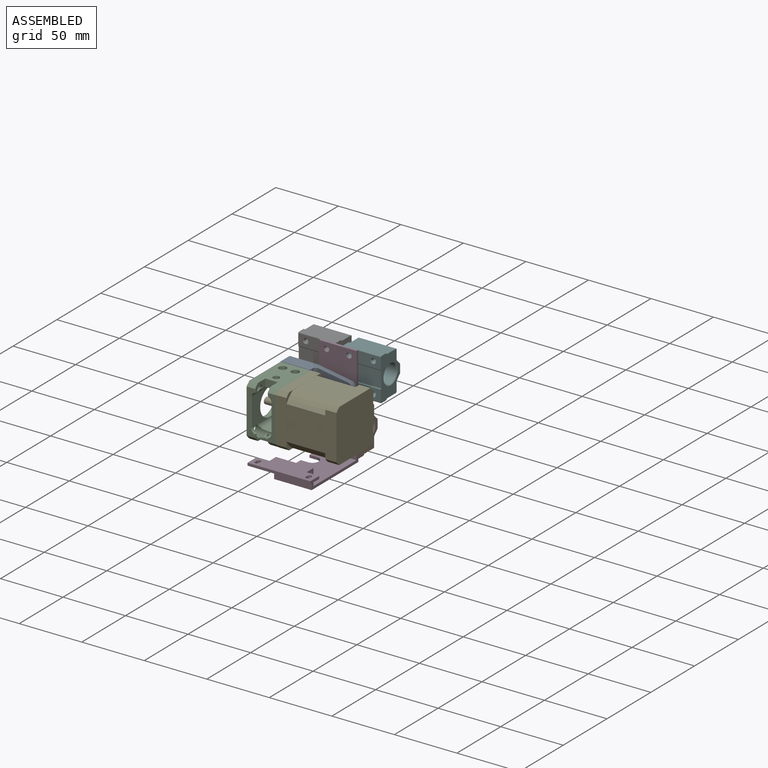
[diagram: assembled view]
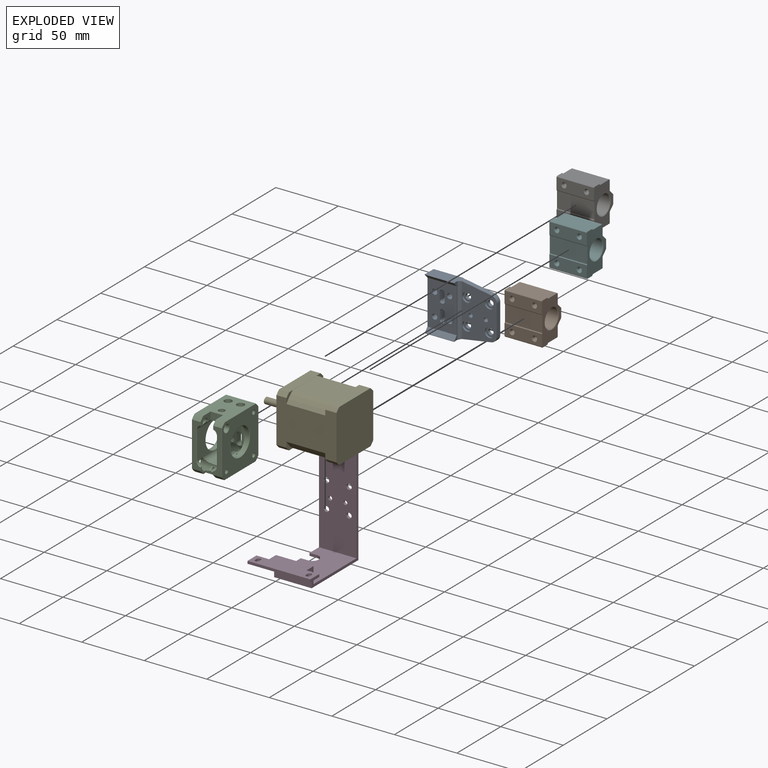
[diagram: exploded view]
GUIDED TOUR — MATED ASSEMBLY (Onshape document 117f9ef6bd54b4592c6fb915, AutoMate assembly 117f9ef6bd54b4592c6fb915_e3fcc4e9994bc45d470cb7e1_33f9f87115cc3c1b8286a026_default)

This assembly has 7 components, labeled P0..P6 below (a component is one placed occurrence of a part; the same part can appear more than once), held together by 6 mates. A mate is a constraint between two components; its type names the relative motion it leaves free:
  FASTENED — locks the two components together rigidly (no relative motion),
  SLIDER — leaves translation along the listed axis free.
Axis/direction vectors are unit vectors and 'through' points are millimeter coordinates, both in the assembly's world frame.

MATES
  1. FASTENED "Fastened 5": P4 <-> P2, direction (-1.000, 0.000, 0.000) through (-1.73, -10.08, 16.37) mm
  2. FASTENED "Fastened 4": P1 <-> P3, direction (0.000, -1.000, 0.000) through (4.17, 4.25, -9.62) mm
  3. FASTENED "Fastened 3": P6 <-> P3, direction (0.000, -1.000, 0.000) through (4.17, 4.25, 35.18) mm
  4. FASTENED "Fastened 2": P3 <-> P0, direction (0.000, -1.000, 0.000) through (4.17, 2.15, 11.18) mm
  5. SLIDER "Slider 1": P5 <-> P3, axis (0.000, -1.000, 0.000) through (22.17, 4.25, 35.18) mm
  6. FASTENED "Fastened 1": P0 <-> P2, direction (0.000, -1.000, 0.000) through (-19.73, -4.58, 9.87) mm

ASSEMBLY ORDER
  1. P4 — the base component [order verified]
  2. P2 [order verified]
  3. P3 [order verified]
  4. P0 [order verified]
  5. P5 [order verified]
  6. P1 [order verified]
  7. P6 [order verified]
(P2 verified with a relaxed clearance tolerance: the source model stores slight part interference there.)
Order-tag legend:
  [order verified] — this step's position reverses a verified removal order: the component was checked to insert without passing through the ones already placed.

Of the 7 components, 2 carry the full construction recipe — the FeatureScript program that regenerates the part's solid from scratch; the rest are supplied as boundary geometry only.
Each toured component is shown spotlighted twice — in the assembled view, then in the exploded view, where a leader line traces a displaced component back to its assembled socket (saturated green if recipe-attached, orange if geometry-only; every other component desaturated gray) — followed by its recipe or geometry summary and the mates that hold it.
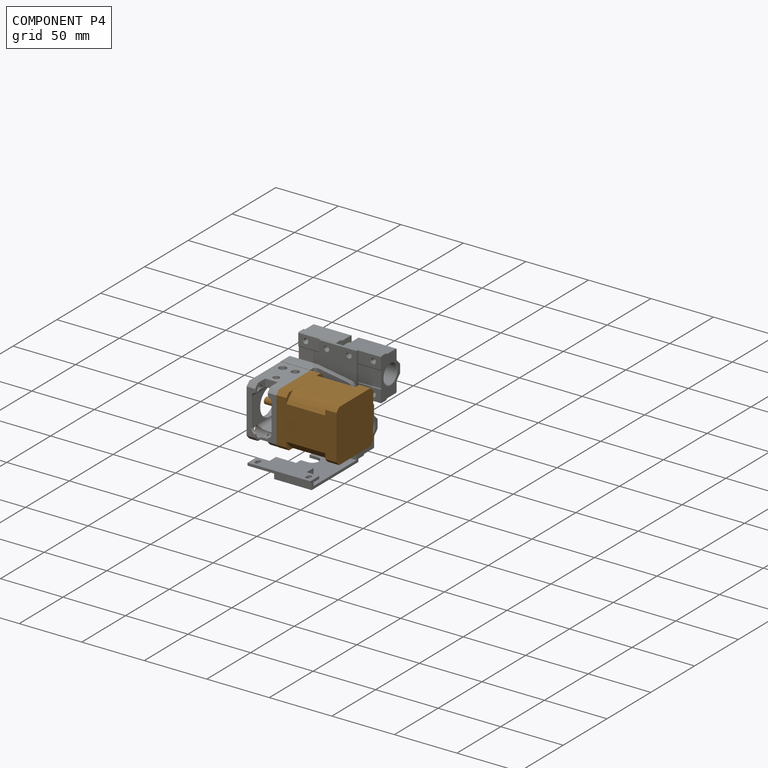
[diagram: component P4 — assembled]
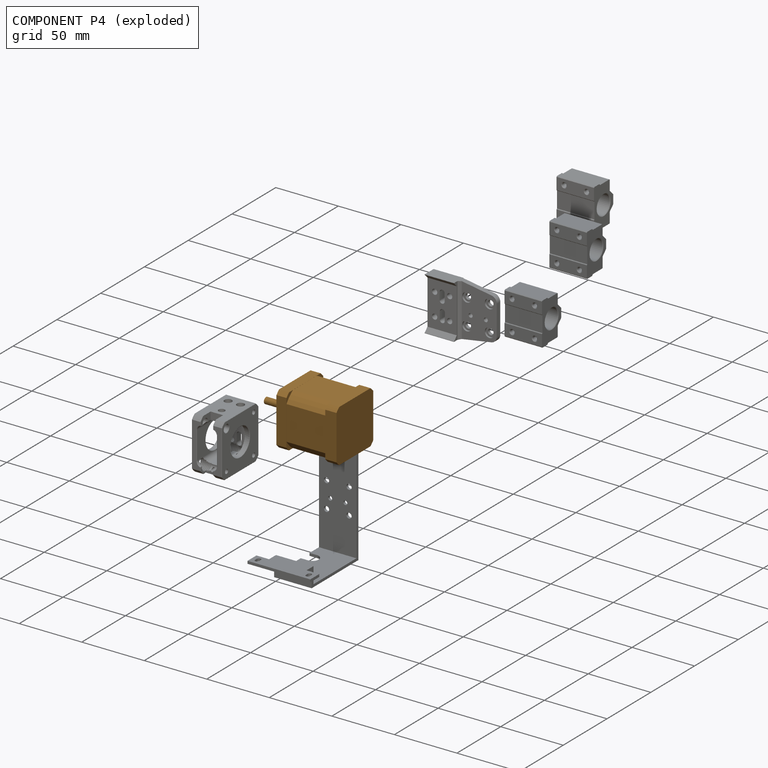
[diagram: component P4 — exploded]
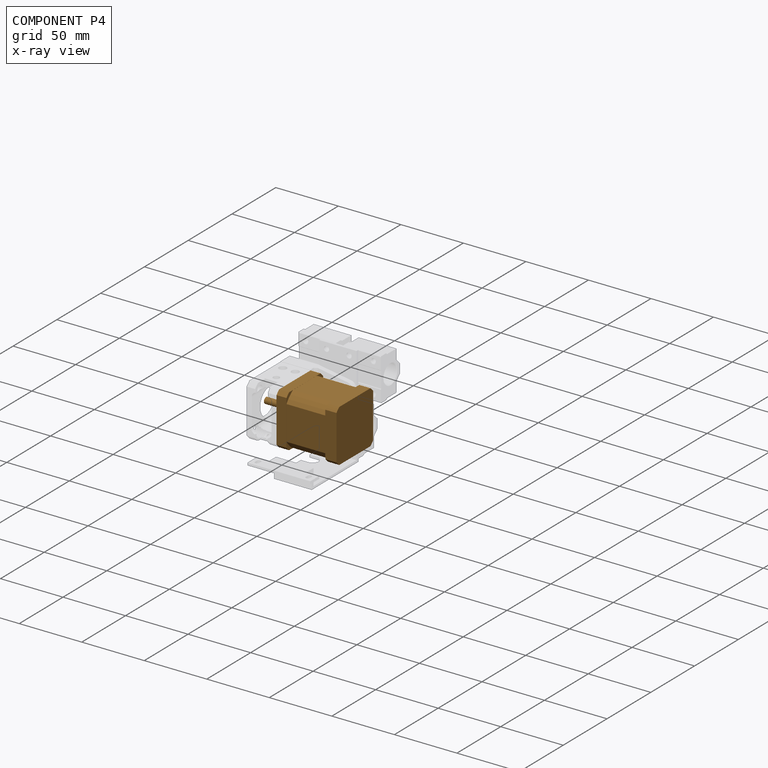
[diagram: component P4 — x-ray view]
COMPONENT P4 — geometry summary (no construction recipe available for this part):
  bounding box: 71.0 x 42.0 x 42.0 mm
  B-rep topology: 1 solid, 40 faces, 182 edges
  volume: 82229 mm^3 (66% of its bounding box)
  symmetry: 4-fold rotationally symmetric about the z axis; mirror-symmetric across its x mid-plane, y mid-plane
Held by: FASTENED mate "Fastened 5" to P2.
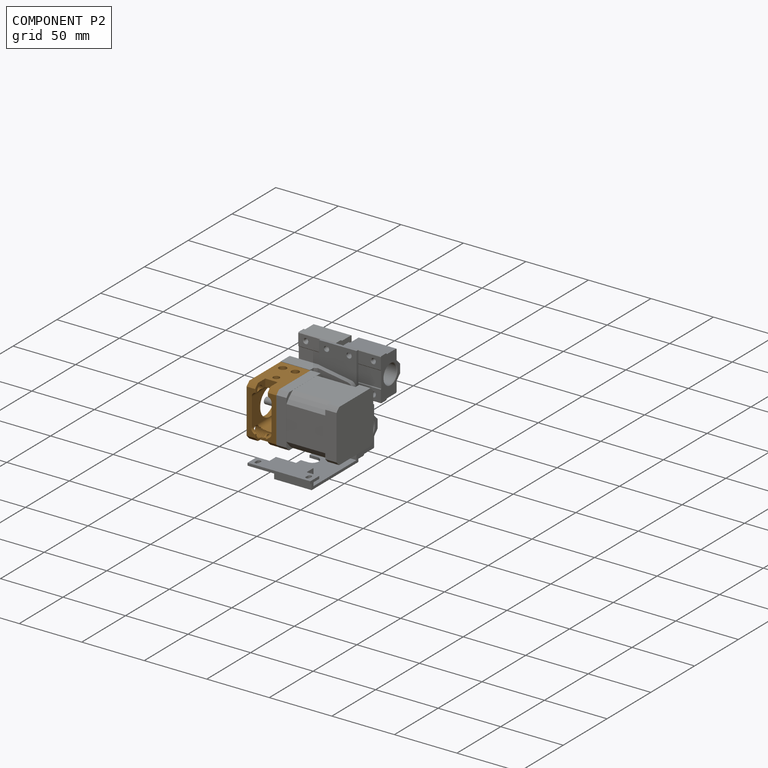
[diagram: component P2 — assembled]
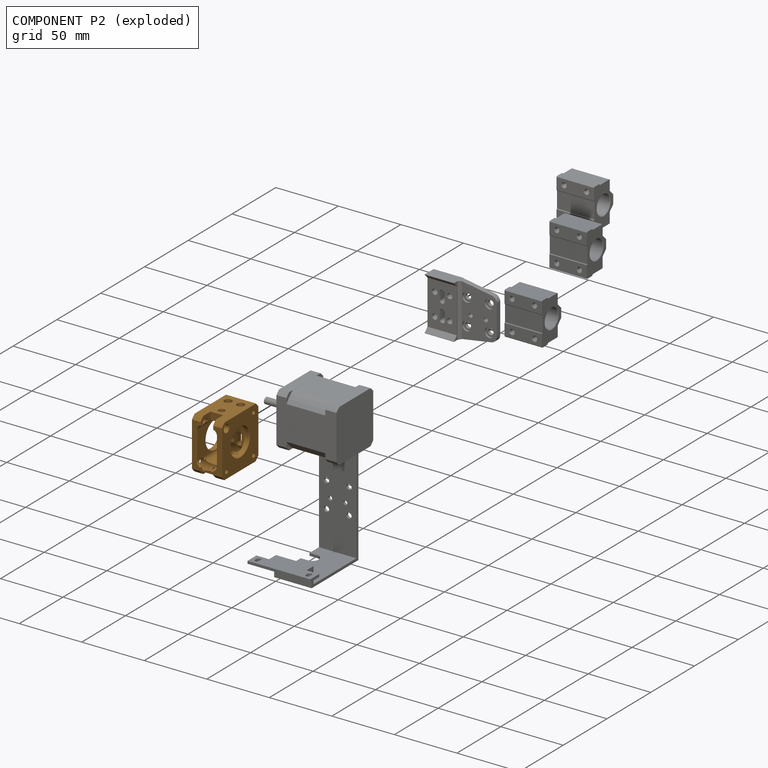
[diagram: component P2 — exploded]
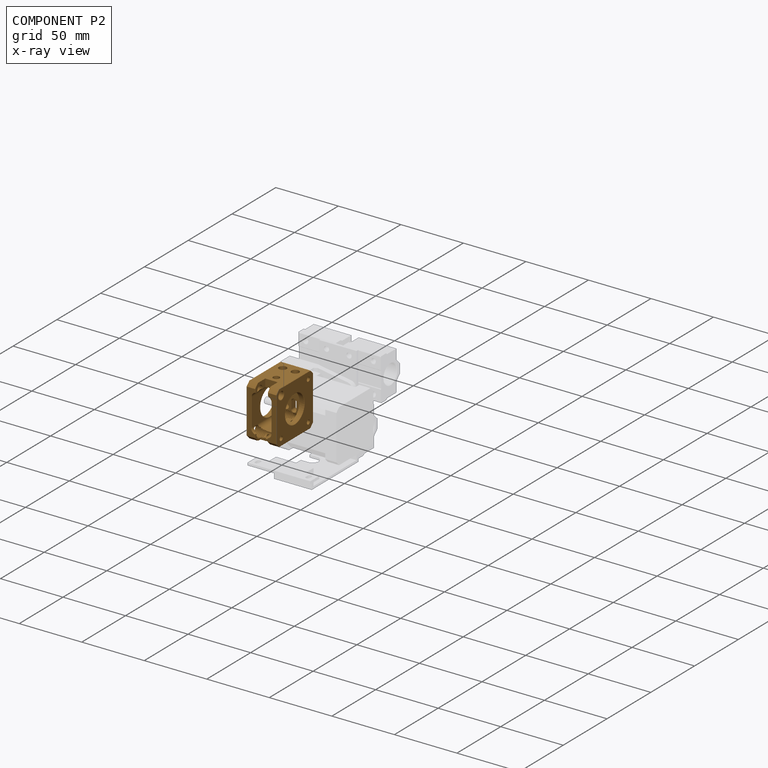
[diagram: component P2 — x-ray view]
COMPONENT P2 — geometry summary (no construction recipe available for this part):
  bounding box: 42.1 x 42.1 x 24.5 mm
  B-rep topology: 1 solid, 462 faces, 2598 edges
  volume: 16699 mm^3 (38% of its bounding box)
Held by: FASTENED mate "Fastened 5" to P4; FASTENED mate "Fastened 1" to P0.
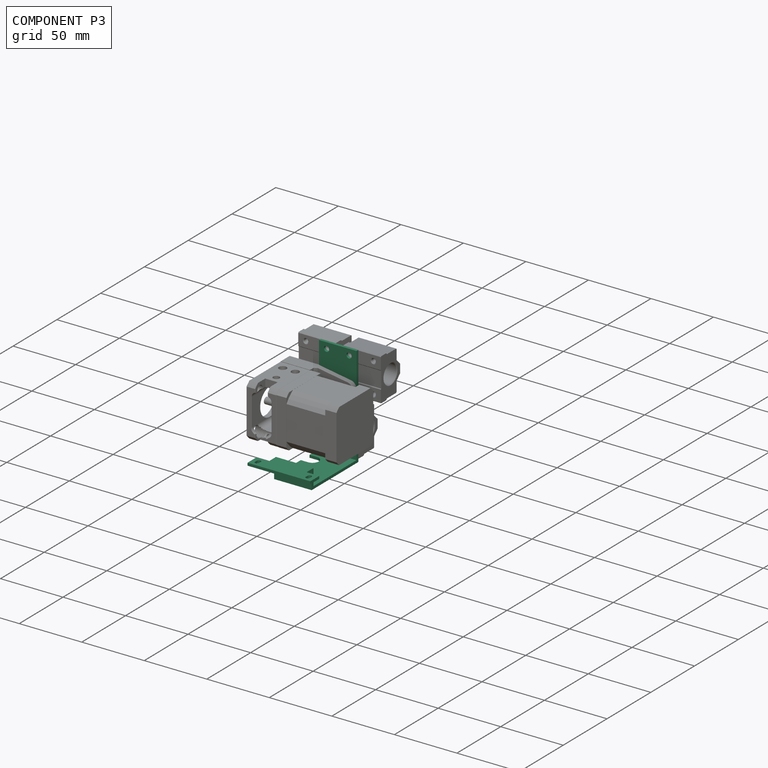
[diagram: component P3 — assembled]
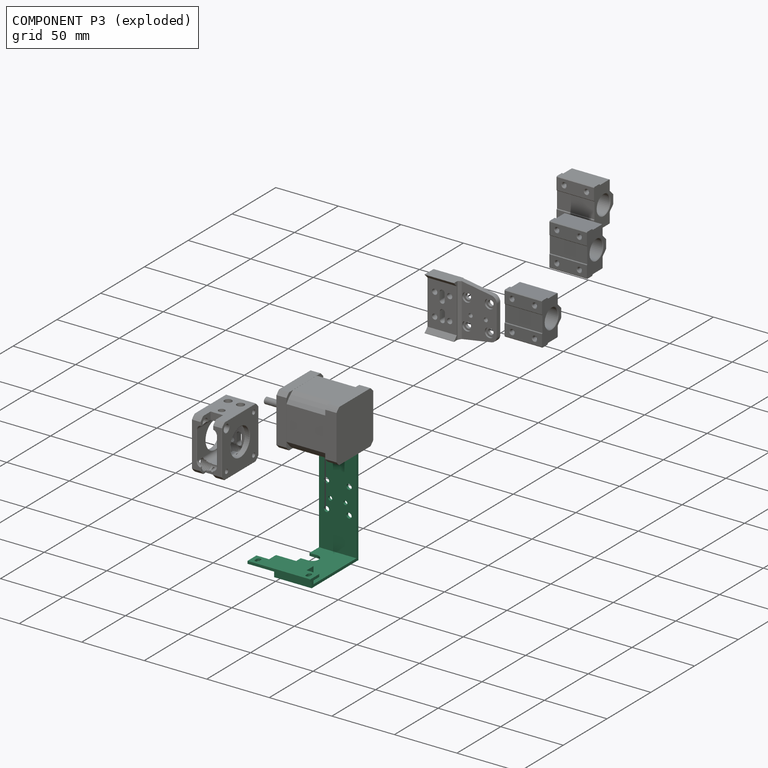
[diagram: component P3 — exploded]
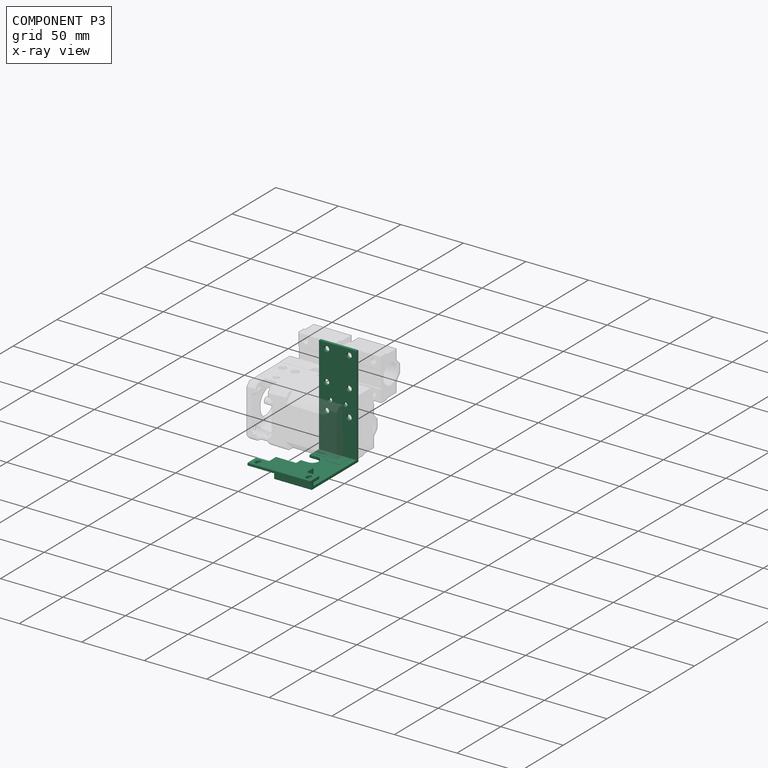
[diagram: component P3 — x-ray view]
COMPONENT P3 — recipe-attached (CADFS 00924145, mesh-verified: the recipe's output STEP matches this component's geometry to below the mesh-comparison resolution (tessellation chordal tolerance ~0.177 mm)).
Held by: FASTENED mate "Fastened 4" to P1; FASTENED mate "Fastened 3" to P6; FASTENED mate "Fastened 2" to P0; SLIDER mate "Slider 1" to P5.
Construction recipe (FeatureScript — the CAD program that rebuilds this solid; sketch coordinates are in the units given by the * unit suffixes, e.g. mm):

FeatureScript 1511;
import(path : "onshape/std/geometry.fs", version : "1511.0");
import(path : "onshape/std/common.fs", version : "1511.0");
const mm = millimeter;
const VERTEX = EntityType.VERTEX;
const EDGE = EntityType.EDGE;
const FACE = EntityType.FACE;
const BODY = EntityType.BODY;
function v(x, y){return vector(x, y);}
function OD(order){return orderDisambiguation(order);}
function OSD(set){return originalSetDisambiguation(set);}
function TD(topology){return topologyDisambiguation(topology);}
function TDD(query){return trueDependencyDisambiguation(query);}
function sQuery(a, b, c) {return sketchEntityQuery(a, b, c);}

annotation { "Feature Type Name" : "Feature", "Feature Type Description" : "" }
export const myFeature = defineFeature(function(context is Context, id is Id, definition is map)
    precondition{}
    {
        {
            var Q0;
            Q0=qCreatedBy(makeId("Front.planeOp"),FACE);
            var sketch = newSketch(context, id + "F0", { "sketchPlane" : qUnion([Q0])});
            skLineSegment(sketch, "E0.bottom", {"start": v(15, -40.5) * mm, "end": v(-15, -40.5) * mm});
            skLineSegment(sketch, "E0.top", {"start": v(15, 40.5) * mm, "end": v(-15, 40.5) * mm});
            skLineSegment(sketch, "E0.left", {"start": v(15, -40.5) * mm, "end": v(15, 40.5) * mm});
            skLineSegment(sketch, "E0.right", {"start": v(-15, -40.5) * mm, "end": v(-15, 40.5) * mm});
            skPoint(sketch, "E0.middle", {"position": v(0, 0) * mm});
            skSolve(sketch);
        }
        {
            var Q0;
            Q0=qSketchRegion(id+"F0",true);
            extrude(context, id + "F1", {"entities" : qUnion([Q0]), "depth" : 2.1 * mm});
        }
        {
            var Q0;
            Q0=makeQuery(id+"F1.opExtrude","CAP_FACE",FACE,{"disambiguationData":[OSD([sQuery(id+"F0.wireOp",EDGE,"E0.bottom"),sQuery(id+"F0.wireOp",EDGE,"E0.top"),sQuery(id+"F0.wireOp",EDGE,"E0.left"),sQuery(id+"F0.wireOp",EDGE,"E0.right")])],"isStart":false});
            var sketch = newSketch(context, id + "F2", { "sketchPlane" : qUnion([Q0])});
            skLineSegment(sketch, "E1.bottom", {"start": v(-15, -40.5) * mm, "end": v(15, -40.5) * mm});
            skLineSegment(sketch, "E1.top", {"start": v(-15, -38.4) * mm, "end": v(15, -38.4) * mm});
            skLineSegment(sketch, "E1.left", {"start": v(-15, -40.5) * mm, "end": v(-15, -38.4) * mm});
            skLineSegment(sketch, "E1.right", {"start": v(15, -40.5) * mm, "end": v(15, -38.4) * mm});
            skSolve(sketch);
        }
        {
            var Q0;
            Q0=qSketchRegion(id+"F2",true);
            extrude(context, id + "F3", {"entities" : qUnion([Q0]), "operationType" : NewBodyOperationType.ADD, "depth" : 51.2 * mm});
        }
        {
            var Q0;
            Q0=makeQuery(id+"F3.opExtrude","SWEPT_FACE",FACE,{"disambiguationData":[OSD([sQuery(id+"F2.wireOp",EDGE,"E1.top")])]});
            var sketch = newSketch(context, id + "F4", { "sketchPlane" : qUnion([Q0])});
            skLineSegment(sketch, "E2.bottom", {"start": v(-15, -53.3) * mm, "end": v(15, -53.3) * mm});
            skLineSegment(sketch, "E2.top", {"start": v(-15, -51.2) * mm, "end": v(15, -51.2) * mm});
            skLineSegment(sketch, "E2.left", {"start": v(-15, -53.3) * mm, "end": v(-15, -51.2) * mm});
            skLineSegment(sketch, "E2.right", {"start": v(15, -53.3) * mm, "end": v(15, -51.2) * mm});
            skSolve(sketch);
        }
        {
            var Q0;
            Q0=qSketchRegion(id+"F4",true);
            extrude(context, id + "F5", {"entities" : qUnion([Q0]), "operationType" : NewBodyOperationType.ADD, "depth" : 13.1 * mm});
        }
        {
            var Q0;
            Q0=makeQuery(id+"F5.boolean.opBoolean","MERGE",FACE,{"derivedFrom":[makeQuery(id+"F3.opExtrude","CAP_FACE",FACE,{"disambiguationData":[OSD([sQuery(id+"F2.wireOp",EDGE,"E1.bottom"),sQuery(id+"F2.wireOp",EDGE,"E1.top"),sQuery(id+"F2.wireOp",EDGE,"E1.left"),sQuery(id+"F2.wireOp",EDGE,"E1.right")])],"isStart":false}),makeQuery(id+"F5.opExtrude","SWEPT_FACE",FACE,{"disambiguationData":[OSD([sQuery(id+"F4.wireOp",EDGE,"E2.bottom")])]})]});
            var sketch = newSketch(context, id + "F6", { "sketchPlane" : qUnion([Q0])});
            skLineSegment(sketch, "E3.bottom", {"start": v(-15, -25.3) * mm, "end": v(15, -25.3) * mm});
            skLineSegment(sketch, "E3.top", {"start": v(-15, -27.4) * mm, "end": v(15, -27.4) * mm});
            skLineSegment(sketch, "E3.left", {"start": v(-15, -25.3) * mm, "end": v(-15, -27.4) * mm});
            skLineSegment(sketch, "E3.right", {"start": v(15, -25.3) * mm, "end": v(15, -27.4) * mm});
            skSolve(sketch);
        }
        {
            var Q0;
            Q0=qSketchRegion(id+"F6",true);
            extrude(context, id + "F7", {"entities" : qUnion([Q0]), "operationType" : NewBodyOperationType.ADD, "depth" : 16 * mm});
        }
        {
            var Q0;
            Q0=makeQuery(id+"F7.boolean.opBoolean","MERGE",FACE,{"derivedFrom":[makeQuery(id+"F5.opExtrude","CAP_FACE",FACE,{"disambiguationData":[OSD([sQuery(id+"F4.wireOp",EDGE,"E2.bottom"),sQuery(id+"F4.wireOp",EDGE,"E2.top"),sQuery(id+"F4.wireOp",EDGE,"E2.left"),sQuery(id+"F4.wireOp",EDGE,"E2.right")])],"isStart":false}),makeQuery(id+"F7.opExtrude","SWEPT_FACE",FACE,{"disambiguationData":[OSD([sQuery(id+"F6.wireOp",EDGE,"E3.bottom")])]})]});
            var sketch = newSketch(context, id + "F8", { "sketchPlane" : qUnion([Q0])});
            skLineSegment(sketch, "E4.bottom", {"start": v(-25.1, -69.3) * mm, "end": v(25.1, -69.3) * mm});
            skLineSegment(sketch, "E4.top", {"start": v(-25.1, -59.1) * mm, "end": v(25.1, -59.1) * mm});
            skLineSegment(sketch, "E4.left", {"start": v(-25.1, -69.3) * mm, "end": v(-25.1, -59.1) * mm});
            skLineSegment(sketch, "E4.right", {"start": v(25.1, -69.3) * mm, "end": v(25.1, -59.1) * mm});
            skLineSegment(sketch, "E5", {"start": v(0, -51.2) * mm, "end": v(0, -65.26) * mm});
            skSolve(sketch);
        }
        {
            var Q0;
            {var subQ3=sQuery(id+"F8.wireOp",EDGE,"E4.left");Q0=makeQuery(id+"F8.imprint","IMPRINT",FACE,{"disambiguationData":[TD([[makeQuery(id+"F8.imprint","IMPRINT",EDGE,{"derivedFrom":subQ3}),-1.0]])]});}
            var Q1;
            {var subQ3=sQuery(id+"F8.wireOp",EDGE,"E4.right");Q1=makeQuery(id+"F8.imprint","IMPRINT",FACE,{"disambiguationData":[TD([[makeQuery(id+"F8.imprint","IMPRINT",EDGE,{"derivedFrom":subQ3}),1.0]])]});}
            extrude(context, id + "F9", {"entities" : qUnion([Q0, Q1]), "operationType" : NewBodyOperationType.ADD, "oppositeDirection" : true, "depth" : 2.1 * mm});
        }
        {
            var Q0;
            {var subQ0=sQuery(id+"F8.wireOp",EDGE,"E4.top");var subQ1=sQuery(id+"F8.wireOp",EDGE,"E4.bottom");var subQ2=sQuery(id+"F6.wireOp",EDGE,"E3.bottom");var subQ3=sQuery(id+"F4.wireOp",EDGE,"E2.right");var subQ4=sQuery(id+"F4.wireOp",EDGE,"E2.left");Q0=makeQuery(id+"F9.boolean.opBoolean","MERGE",FACE,{"derivedFrom":[makeQuery(id+"F7.boolean.opBoolean","MERGE",FACE,{"derivedFrom":[makeQuery(id+"F5.opExtrude","CAP_FACE",FACE,{"disambiguationData":[OSD([sQuery(id+"F4.wireOp",EDGE,"E2.bottom"),sQuery(id+"F4.wireOp",EDGE,"E2.top"),subQ4,subQ3])],"isStart":false}),makeQuery(id+"F7.opExtrude","SWEPT_FACE",FACE,{"disambiguationData":[OSD([subQ2])]})]}),makeQuery(id+"F9.opExtrude","CAP_FACE",FACE,{"disambiguationData":[OSD([subQ4,subQ2,sQuery(id+"F6.wireOp",EDGE,"E3.left"),subQ1,subQ0,sQuery(id+"F8.wireOp",EDGE,"E4.left")])],"isStart":true}),makeQuery(id+"F9.opExtrude","CAP_FACE",FACE,{"disambiguationData":[OSD([subQ3,subQ2,sQuery(id+"F6.wireOp",EDGE,"E3.right"),subQ1,subQ0,sQuery(id+"F8.wireOp",EDGE,"E4.right")])],"isStart":true})]});}
            var sketch = newSketch(context, id + "F10", { "sketchPlane" : qUnion([Q0])});
            skArc(sketch, "E6", {"start": v(-21.9, -65.2) * mm, "mid": v(-20.3, -66.8) * mm, "end": v(-18.7, -65.2) * mm});
            skArc(sketch, "E7", {"start": v(-18.7, -63.2) * mm, "mid": v(-20.3, -61.6) * mm, "end": v(-21.9, -63.2) * mm});
            skLineSegment(sketch, "E8", {"start": v(-21.9, -63.2) * mm, "end": v(-21.9, -65.2) * mm});
            skLineSegment(sketch, "E9", {"start": v(-18.7, -65.2) * mm, "end": v(-18.7, -63.2) * mm});
            skLineSegment(sketch, "E10", {"start": v(-20.3, -63.2) * mm, "end": v(-20.3, -65.2) * mm});
            skPoint(sketch, "E11", {"position": v(-20.3, -64.2) * mm});
            skLineSegment(sketch, "E12", {"start": v(0, -69.3) * mm, "end": v(0, -51.2) * mm});
            skLineSegment(sketch, "E13.MirrorCS", {"start": v(18.7, -65.2) * mm, "end": v(18.7, -63.2) * mm});
            skArc(sketch, "E14.MirrorCS", {"start": v(18.7, -63.2) * mm, "mid": v(20.3, -61.6) * mm, "end": v(21.9, -63.2) * mm});
            skLineSegment(sketch, "E15.MirrorCS", {"start": v(21.9, -63.2) * mm, "end": v(21.9, -65.2) * mm});
            skArc(sketch, "E16.MirrorCS", {"start": v(21.9, -65.2) * mm, "mid": v(20.3, -66.8) * mm, "end": v(18.7, -65.2) * mm});
            skSolve(sketch);
        }
        {
            var Q0;
            Q0=makeQuery(id+"F10.imprint","IMPRINT",FACE,{"disambiguationData":[TD([[makeQuery(id+"F10.imprint","IMPRINT",EDGE,{"derivedFrom":sQuery(id+"F10.wireOp",EDGE,"E6")}),1.0]])]});
            var Q1;
            Q1=makeQuery(id+"F10.imprint","IMPRINT",FACE,{"disambiguationData":[TD([[makeQuery(id+"F10.imprint","IMPRINT",EDGE,{"derivedFrom":sQuery(id+"F10.wireOp",EDGE,"E13.MirrorCS")}),-1.0]])]});
            extrude(context, id + "F11", {"entities" : qUnion([Q0, Q1]), "operationType" : NewBodyOperationType.REMOVE, "endBound" : BoundingType.THROUGH_ALL, "oppositeDirection" : true, "depth" : 25 * mm});
        }
        {
            var Q0;
            Q0=makeQuery(id+"F3.opExtrude","SWEPT_FACE",FACE,{"disambiguationData":[OSD([sQuery(id+"F2.wireOp",EDGE,"E1.top")])]});
            var sketch = newSketch(context, id + "F12", { "sketchPlane" : qUnion([Q0])});
            skArc(sketch, "E17", {"start": v(-9.15, -22.9) * mm, "mid": v(-4.15, -17.9) * mm, "end": v(-9.15, -12.9) * mm});
            skLineSegment(sketch, "E18", {"start": v(-9.15, -12.9) * mm, "end": v(-15, -12.9) * mm});
            skLineSegment(sketch, "E19", {"start": v(-9.15, -22.9) * mm, "end": v(-15, -22.9) * mm});
            skLineSegment(sketch, "E20", {"start": v(-15, -22.9) * mm, "end": v(-15, -12.9) * mm});
            skSolve(sketch);
        }
        {
            var Q0;
            Q0=qSketchRegion(id+"F12",true);
            extrude(context, id + "F13", {"entities" : qUnion([Q0]), "operationType" : NewBodyOperationType.REMOVE, "endBound" : BoundingType.THROUGH_ALL, "oppositeDirection" : true, "depth" : 25 * mm});
        }
        {
            var Q0;
            Q0=makeQuery(id+"F1.opExtrude","CAP_FACE",FACE,{"disambiguationData":[OSD([sQuery(id+"F0.wireOp",EDGE,"E0.bottom"),sQuery(id+"F0.wireOp",EDGE,"E0.top"),sQuery(id+"F0.wireOp",EDGE,"E0.left"),sQuery(id+"F0.wireOp",EDGE,"E0.right")])],"isStart":false});
            var sketch = newSketch(context, id + "F14", { "sketchPlane" : qUnion([Q0])});
            skCircle(sketch, "E21", {"center": v(9, 35.6) * mm, "radius": 2.1 * mm});
            skCircle(sketch, "E22.0.1.0", {"center": v(9, 11.6) * mm, "radius": 2.1 * mm});
            skCircle(sketch, "E22.1.0.0", {"center": v(-9, 35.6) * mm, "radius": 2.1 * mm});
            skCircle(sketch, "E22.1.1.0", {"center": v(-9, 11.6) * mm, "radius": 2.1 * mm});
            skLineSegment(sketch, "E22.direction1", {"start": v(9, 35.6) * mm, "end": v(-9, 35.6) * mm, "construction": true});
            skLineSegment(sketch, "E22.direction2", {"start": v(9, 35.6) * mm, "end": v(9, 11.6) * mm, "construction": true});
            skCircle(sketch, "E23", {"center": v(9, -9.2) * mm, "radius": 2.1 * mm});
            skCircle(sketch, "E24.1.0.0", {"center": v(-9, -9.2) * mm, "radius": 2.1 * mm});
            skLineSegment(sketch, "E24.direction1", {"start": v(9, -9.2) * mm, "end": v(-9, -9.2) * mm, "construction": true});
            skCircle(sketch, "E25", {"center": v(6.05, -0.7) * mm, "radius": 1.6 * mm});
            skCircle(sketch, "E26", {"center": v(-6.05, -0.7) * mm, "radius": 1.6 * mm});
            skSolve(sketch);
        }
        {
            var Q0;
            Q0=qSketchRegion(id+"F14",true);
            extrude(context, id + "F15", {"entities" : qUnion([Q0]), "operationType" : NewBodyOperationType.REMOVE, "endBound" : BoundingType.THROUGH_ALL, "oppositeDirection" : true, "depth" : 25 * mm});
        }
    });
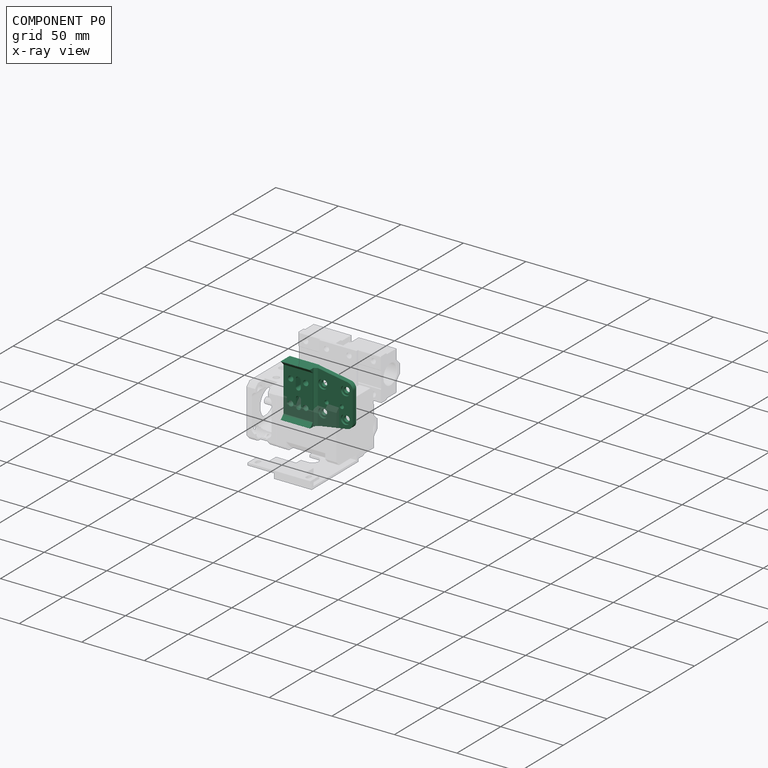
[diagram: component P0 — x-ray view]
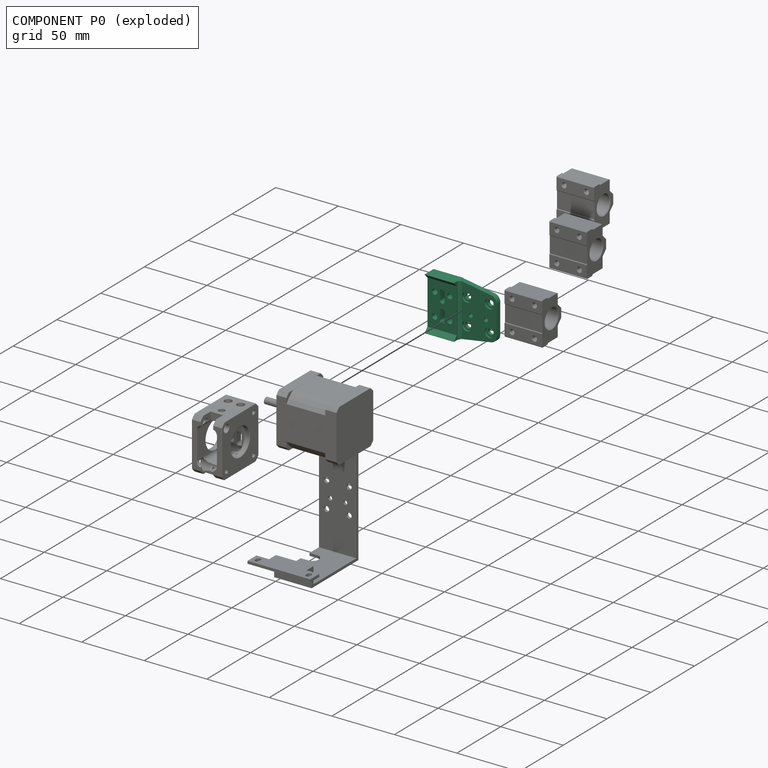
[diagram: component P0 — exploded]
COMPONENT P0 — recipe-attached (CADFS 00924143, mesh-verified: the recipe's output STEP matches this component's geometry to below the mesh-comparison resolution (tessellation chordal tolerance ~0.104 mm)).
Held by: FASTENED mate "Fastened 2" to P3; FASTENED mate "Fastened 1" to P2.
Construction recipe (FeatureScript — the CAD program that rebuilds this solid; sketch coordinates are in the units given by the * unit suffixes, e.g. mm):

FeatureScript 1511;
import(path : "onshape/std/geometry.fs", version : "1511.0");
import(path : "onshape/std/common.fs", version : "1511.0");
const mm = millimeter;
const VERTEX = EntityType.VERTEX;
const EDGE = EntityType.EDGE;
const FACE = EntityType.FACE;
const BODY = EntityType.BODY;
function v(x, y){return vector(x, y);}
function OD(order){return orderDisambiguation(order);}
function OSD(set){return originalSetDisambiguation(set);}
function TD(topology){return topologyDisambiguation(topology);}
function TDD(query){return trueDependencyDisambiguation(query);}
function sQuery(a, b, c) {return sketchEntityQuery(a, b, c);}

annotation { "Feature Type Name" : "Feature", "Feature Type Description" : "" }
export const myFeature = defineFeature(function(context is Context, id is Id, definition is map)
    precondition{}
    {
        {
            var Q0;
            Q0=qCreatedBy(makeId("Front.planeOp"),FACE);
            var sketch = newSketch(context, id + "F0", { "sketchPlane" : qUnion([Q0])});
            skLineSegment(sketch, "E0.bottom", {"start": v(11.75, -21.26) * mm, "end": v(-11.75, -21.26) * mm});
            skLineSegment(sketch, "E0.top", {"start": v(11.75, 21.25) * mm, "end": v(-11.75, 21.25) * mm});
            skLineSegment(sketch, "E0.left", {"start": v(11.75, -21.25) * mm, "end": v(11.75, 21.26) * mm});
            skLineSegment(sketch, "E0.right", {"start": v(-11.75, -21.26) * mm, "end": v(-11.75, 21.25) * mm});
            skPoint(sketch, "E0.middle", {"position": v(0, 0) * mm});
            skSolve(sketch);
        }
        {
            var Q0;
            Q0=qSketchRegion(id+"F0",true);
            extrude(context, id + "F1", {"entities" : qUnion([Q0]), "depth" : 9 * mm});
        }
        {
            var Q0;
            Q0=makeQuery(id+"F1.opExtrude","CAP_FACE",FACE,{"disambiguationData":[OSD([sQuery(id+"F0.wireOp",EDGE,"E0.bottom"),sQuery(id+"F0.wireOp",EDGE,"E0.top"),sQuery(id+"F0.wireOp",EDGE,"E0.left"),sQuery(id+"F0.wireOp",EDGE,"E0.right")])],"isStart":false});
            var sketch = newSketch(context, id + "F2", { "sketchPlane" : qUnion([Q0])});
            skCircle(sketch, "E1", {"center": v(-6, 9) * mm, "radius": 2.12 * mm});
            skCircle(sketch, "E2.1.0.0", {"center": v(6, 9) * mm, "radius": 2.12 * mm});
            skLineSegment(sketch, "E2.direction1", {"start": v(-6, 9) * mm, "end": v(6, 9) * mm, "construction": true});
            skCircle(sketch, "E3.1.0.0", {"center": v(-6, -9) * mm, "radius": 2.12 * mm});
            skCircle(sketch, "E3.1.0.1", {"center": v(6, -9) * mm, "radius": 2.12 * mm});
            skLineSegment(sketch, "E3.direction1", {"start": v(-6, -9) * mm, "end": v(-6, 9) * mm, "construction": true});
            skArc(sketch, "E4", {"start": v(2, 10) * mm, "mid": v(0, 12) * mm, "end": v(-2, 10) * mm});
            skLineSegment(sketch, "E5.left", {"start": v(2, 10) * mm, "end": v(2, 4) * mm});
            skLineSegment(sketch, "E5.right", {"start": v(-2, 10) * mm, "end": v(-2, 4) * mm});
            skArc(sketch, "E6", {"start": v(-2, 4) * mm, "mid": v(0, 2) * mm, "end": v(2, 4) * mm});
            skArc(sketch, "E7.1.0.0", {"start": v(2.12, -4) * mm, "mid": v(0.12, -2) * mm, "end": v(-1.88, -4) * mm});
            skLineSegment(sketch, "E7.1.0.1", {"start": v(2.12, -4) * mm, "end": v(2.12, -10) * mm});
            skArc(sketch, "E7.1.0.2", {"start": v(-1.88, -10) * mm, "mid": v(0.12, -12) * mm, "end": v(2.12, -10) * mm});
            skLineSegment(sketch, "E7.1.0.3", {"start": v(-1.88, -4) * mm, "end": v(-1.88, -10) * mm});
            skLineSegment(sketch, "E7.direction1", {"start": v(-2, 10) * mm, "end": v(-1.88, -4) * mm, "construction": true});
            skSolve(sketch);
        }
        {
            var Q0;
            Q0=makeQuery(id+"F2.imprint","IMPRINT",FACE,{"disambiguationData":[TD([[makeQuery(id+"F2.imprint","IMPRINT",EDGE,{"derivedFrom":sQuery(id+"F2.wireOp",EDGE,"E1")}),1.0]])]});
            var Q1;
            Q1=makeQuery(id+"F2.imprint","IMPRINT",FACE,{"disambiguationData":[TD([[makeQuery(id+"F2.imprint","IMPRINT",EDGE,{"derivedFrom":sQuery(id+"F2.wireOp",EDGE,"E4")}),1.0]])]});
            var Q2;
            Q2=makeQuery(id+"F2.imprint","IMPRINT",FACE,{"disambiguationData":[TD([[makeQuery(id+"F2.imprint","IMPRINT",EDGE,{"derivedFrom":sQuery(id+"F2.wireOp",EDGE,"E2.1.0.0")}),1.0]])]});
            var Q3;
            Q3=makeQuery(id+"F2.imprint","IMPRINT",FACE,{"disambiguationData":[TD([[makeQuery(id+"F2.imprint","IMPRINT",EDGE,{"derivedFrom":sQuery(id+"F2.wireOp",EDGE,"E3.1.0.1")}),1.0]])]});
            var Q4;
            Q4=makeQuery(id+"F2.imprint","IMPRINT",FACE,{"disambiguationData":[TD([[makeQuery(id+"F2.imprint","IMPRINT",EDGE,{"derivedFrom":sQuery(id+"F2.wireOp",EDGE,"E7.1.0.0")}),1.0]])]});
            var Q5;
            Q5=makeQuery(id+"F2.imprint","IMPRINT",FACE,{"disambiguationData":[TD([[makeQuery(id+"F2.imprint","IMPRINT",EDGE,{"derivedFrom":sQuery(id+"F2.wireOp",EDGE,"E3.1.0.0")}),1.0]])]});
            extrude(context, id + "F3", {"entities" : qUnion([Q0, Q1, Q2, Q3, Q4, Q5]), "operationType" : NewBodyOperationType.REMOVE, "endBound" : BoundingType.THROUGH_ALL, "oppositeDirection" : true, "depth" : 25 * mm});
        }
        {
            var Q0;
            Q0=makeQuery(id+"F1.opExtrude","SWEPT_FACE",FACE,{"disambiguationData":[OSD([sQuery(id+"F0.wireOp",EDGE,"E0.right")])]});
            var sketch = newSketch(context, id + "F4", { "sketchPlane" : qUnion([Q0])});
            skLineSegment(sketch, "E8", {"start": v(9, 21.25) * mm, "end": v(12.25, 21.25) * mm});
            skLineSegment(sketch, "E9", {"start": v(12.25, 21.25) * mm, "end": v(12.25, 21) * mm});
            skLineSegment(sketch, "E10", {"start": v(12.25, 21) * mm, "end": v(9, 17.75) * mm});
            skLineSegment(sketch, "E11", {"start": v(9, 17.75) * mm, "end": v(9, 21.25) * mm});
            skLineSegment(sketch, "E12", {"start": v(0, 0) * mm, "end": v(9, 0) * mm});
            skLineSegment(sketch, "E13.MirrorCS", {"start": v(9, -21.26) * mm, "end": v(12.25, -21.26) * mm});
            skLineSegment(sketch, "E14.MirrorCS", {"start": v(9, -17.76) * mm, "end": v(9, -21.26) * mm});
            skLineSegment(sketch, "E15.MirrorCS", {"start": v(12.25, -21) * mm, "end": v(9, -17.76) * mm});
            skLineSegment(sketch, "E16.MirrorCS", {"start": v(12.25, -21.26) * mm, "end": v(12.25, -21) * mm});
            skSolve(sketch);
        }
        {
            var Q0;
            Q0=makeQuery(id+"F4.imprint","IMPRINT",FACE,{"disambiguationData":[TD([[makeQuery(id+"F4.imprint","IMPRINT",EDGE,{"derivedFrom":sQuery(id+"F4.wireOp",EDGE,"E8")}),-1.0]])]});
            var Q1;
            Q1=makeQuery(id+"F4.imprint","IMPRINT",FACE,{"disambiguationData":[TD([[makeQuery(id+"F4.imprint","IMPRINT",EDGE,{"derivedFrom":sQuery(id+"F4.wireOp",EDGE,"E13.MirrorCS")}),1.0]])]});
            extrude(context, id + "F5", {"entities" : qUnion([Q0, Q1]), "operationType" : NewBodyOperationType.ADD, "oppositeDirection" : true, "depth" : 23.5 * mm});
        }
        {
            var Q0;
            Q0=makeQuery(id+"F1.opExtrude","CAP_EDGE",EDGE,{"disambiguationData":[OSD([sQuery(id+"F0.wireOp",EDGE,"E0.top")])],"isStart":true});
            var Q1;
            Q1=makeQuery(id+"F1.opExtrude","CAP_EDGE",EDGE,{"disambiguationData":[OSD([sQuery(id+"F0.wireOp",EDGE,"E0.bottom")])],"isStart":true});
            chamfer(context, id + "F6", {"entities" : qUnion([Q0, Q1]), "width" : 2 * mm, "tangentPropagation" : true});
        }
        {
            var Q0;
            Q0=makeQuery(id+"F5.boolean.opBoolean","MERGE",FACE,{"derivedFrom":[makeQuery(id+"F1.opExtrude","SWEPT_FACE",FACE,{"disambiguationData":[OSD([sQuery(id+"F0.wireOp",EDGE,"E0.left")])]}),makeQuery(id+"F5.opExtrude","CAP_FACE",FACE,{"disambiguationData":[OSD([sQuery(id+"F4.wireOp",EDGE,"E8"),sQuery(id+"F4.wireOp",EDGE,"E9"),sQuery(id+"F4.wireOp",EDGE,"E10"),sQuery(id+"F4.wireOp",EDGE,"E11")])],"isStart":false}),makeQuery(id+"F5.opExtrude","CAP_FACE",FACE,{"disambiguationData":[OSD([sQuery(id+"F4.wireOp",EDGE,"E13.MirrorCS"),sQuery(id+"F4.wireOp",EDGE,"E14.MirrorCS"),sQuery(id+"F4.wireOp",EDGE,"E15.MirrorCS"),sQuery(id+"F4.wireOp",EDGE,"E16.MirrorCS")])],"isStart":false})]});
            var sketch = newSketch(context, id + "F7", { "sketchPlane" : qUnion([Q0])});
            skLineSegment(sketch, "E17.bottom", {"start": v(-2.27, 21.25) * mm, "end": v(-6.27, 21.25) * mm});
            skLineSegment(sketch, "E17.top", {"start": v(-2.27, -21.25) * mm, "end": v(-6.27, -21.25) * mm});
            skLineSegment(sketch, "E17.left", {"start": v(-2.27, 21.25) * mm, "end": v(-2.27, -21.25) * mm});
            skLineSegment(sketch, "E17.right", {"start": v(-6.27, 21.25) * mm, "end": v(-6.27, -21.25) * mm});
            skSolve(sketch);
        }
        {
            var Q0;
            Q0=makeQuery(id+"F7.imprint","IMPRINT",FACE,{"disambiguationData":[TD([[makeQuery(id+"F7.imprint","IMPRINT",EDGE,{"derivedFrom":sQuery(id+"F7.wireOp",EDGE,"E17.bottom")}),1.0]])]});
            extrude(context, id + "F8", {"entities" : qUnion([Q0]), "operationType" : NewBodyOperationType.ADD, "depth" : 30 * mm});
        }
        {
            var Q0;
            Q0=makeQuery(id+"F8.opExtrude","SWEPT_FACE",FACE,{"disambiguationData":[OSD([sQuery(id+"F7.wireOp",EDGE,"E17.right")])]});
            var sketch = newSketch(context, id + "F9", { "sketchPlane" : qUnion([Q0])});
            skCircle(sketch, "E18", {"center": v(17.9, -10.5) * mm, "radius": 2.25 * mm});
            skCircle(sketch, "E19.0.1.0", {"center": v(17.9, 10.3) * mm, "radius": 2.25 * mm});
            skCircle(sketch, "E19.1.0.0", {"center": v(35.9, -10.5) * mm, "radius": 2.25 * mm});
            skCircle(sketch, "E19.1.1.0", {"center": v(35.9, 10.3) * mm, "radius": 2.25 * mm});
            skLineSegment(sketch, "E19.direction1", {"start": v(17.9, -10.5) * mm, "end": v(35.9, -10.5) * mm, "construction": true});
            skLineSegment(sketch, "E19.direction2", {"start": v(17.9, -10.5) * mm, "end": v(17.9, 10.3) * mm, "construction": true});
            skCircle(sketch, "E20", {"center": v(32.95, -2) * mm, "radius": 1.6 * mm});
            skCircle(sketch, "E21.1.0.0", {"center": v(20.85, -2) * mm, "radius": 1.6 * mm});
            skLineSegment(sketch, "E21.direction1", {"start": v(32.95, -2) * mm, "end": v(20.85, -2) * mm, "construction": true});
            skSolve(sketch);
        }
        {
            var Q0;
            Q0=makeQuery(id+"F9.imprint","IMPRINT",FACE,{"disambiguationData":[TD([[makeQuery(id+"F9.imprint","IMPRINT",EDGE,{"derivedFrom":sQuery(id+"F9.wireOp",EDGE,"E19.0.1.0")}),1.0]])]});
            var Q1;
            Q1=makeQuery(id+"F9.imprint","IMPRINT",FACE,{"disambiguationData":[TD([[makeQuery(id+"F9.imprint","IMPRINT",EDGE,{"derivedFrom":sQuery(id+"F9.wireOp",EDGE,"E19.1.1.0")}),1.0]])]});
            var Q2;
            Q2=makeQuery(id+"F9.imprint","IMPRINT",FACE,{"disambiguationData":[TD([[makeQuery(id+"F9.imprint","IMPRINT",EDGE,{"derivedFrom":sQuery(id+"F9.wireOp",EDGE,"E21.1.0.0")}),1.0]])]});
            var Q3;
            Q3=makeQuery(id+"F9.imprint","IMPRINT",FACE,{"disambiguationData":[TD([[makeQuery(id+"F9.imprint","IMPRINT",EDGE,{"derivedFrom":sQuery(id+"F9.wireOp",EDGE,"E20")}),1.0]])]});
            var Q4;
            Q4=makeQuery(id+"F9.imprint","IMPRINT",FACE,{"disambiguationData":[TD([[makeQuery(id+"F9.imprint","IMPRINT",EDGE,{"derivedFrom":sQuery(id+"F9.wireOp",EDGE,"E18")}),1.0]])]});
            var Q5;
            Q5=makeQuery(id+"F9.imprint","IMPRINT",FACE,{"disambiguationData":[TD([[makeQuery(id+"F9.imprint","IMPRINT",EDGE,{"derivedFrom":sQuery(id+"F9.wireOp",EDGE,"E19.1.0.0")}),1.0]])]});
            extrude(context, id + "F10", {"entities" : qUnion([Q0, Q1, Q2, Q3, Q4, Q5]), "operationType" : NewBodyOperationType.REMOVE, "endBound" : BoundingType.THROUGH_ALL, "oppositeDirection" : true, "depth" : 25 * mm});
        }
        {
            var Q0;
            Q0=makeQuery(id+"F8.opExtrude","SWEPT_FACE",FACE,{"disambiguationData":[OSD([sQuery(id+"F7.wireOp",EDGE,"E17.right")])]});
            var sketch = newSketch(context, id + "F11", { "sketchPlane" : qUnion([Q0])});
            skCircle(sketch, "E22", {"center": v(17.9, 10.3) * mm, "radius": 3.75 * mm});
            skCircle(sketch, "E23", {"center": v(35.9, 10.3) * mm, "radius": 3.75 * mm});
            skCircle(sketch, "E24", {"center": v(35.9, -10.5) * mm, "radius": 3.75 * mm});
            skCircle(sketch, "E25", {"center": v(17.9, -10.5) * mm, "radius": 3.75 * mm});
            skSolve(sketch);
        }
        {
            var Q0;
            Q0=makeQuery(id+"F11.imprint","IMPRINT",FACE,{"disambiguationData":[TD([[makeQuery(id+"F11.imprint","IMPRINT",EDGE,{"derivedFrom":sQuery(id+"F11.wireOp",EDGE,"E22")}),1.0]])]});
            var Q1;
            Q1=makeQuery(id+"F11.imprint","IMPRINT",FACE,{"disambiguationData":[TD([[makeQuery(id+"F11.imprint","IMPRINT",EDGE,{"derivedFrom":sQuery(id+"F11.wireOp",EDGE,"E23")}),1.0]])]});
            var Q2;
            Q2=makeQuery(id+"F11.imprint","IMPRINT",FACE,{"disambiguationData":[TD([[makeQuery(id+"F11.imprint","IMPRINT",EDGE,{"derivedFrom":sQuery(id+"F11.wireOp",EDGE,"E24")}),1.0]])]});
            var Q3;
            Q3=makeQuery(id+"F11.imprint","IMPRINT",FACE,{"disambiguationData":[TD([[makeQuery(id+"F11.imprint","IMPRINT",EDGE,{"derivedFrom":sQuery(id+"F11.wireOp",EDGE,"E25")}),1.0]])]});
            extrude(context, id + "F12", {"entities" : qUnion([Q0, Q1, Q2, Q3]), "operationType" : NewBodyOperationType.REMOVE, "oppositeDirection" : true, "depth" : 1.5 * mm});
        }
        {
            var Q0;
            Q0=makeQuery(id+"F8.opExtrude","CAP_EDGE",EDGE,{"disambiguationData":[OSD([sQuery(id+"F7.wireOp",EDGE,"E17.bottom")])],"isStart":false});
            var Q1;
            Q1=makeQuery(id+"F8.opExtrude","CAP_EDGE",EDGE,{"disambiguationData":[OSD([sQuery(id+"F7.wireOp",EDGE,"E17.top")])],"isStart":false});
            chamfer(context, id + "F13", {"entities" : qUnion([Q0, Q1]), "chamferType" : ChamferType.TWO_OFFSETS, "width1" : 5 * mm, "oppositeDirection" : false, "width2" : 30 * mm, "tangentPropagation" : true});
        }
        {
            var Q0;
            {var subQ0=sQuery(id+"F7.wireOp",EDGE,"E17.bottom");Q0=makeQuery(id+"F13.opChamfer","BLEND_EDGE",EDGE,{"blendedFrom":[makeQuery(id+"F8.opExtrude","CAP_EDGE",EDGE,{"disambiguationData":[OSD([subQ0])],"isStart":false}),makeQuery(id+"F8.opExtrude","CAP_FACE",FACE,{"disambiguationData":[OSD([subQ0,sQuery(id+"F7.wireOp",EDGE,"E17.top"),sQuery(id+"F7.wireOp",EDGE,"E17.left"),sQuery(id+"F7.wireOp",EDGE,"E17.right")])],"isStart":false})],"blendedInto":[makeQuery(id+"F8.opExtrude","CAP_FACE",FACE,{"disambiguationData":[OSD([subQ0,sQuery(id+"F7.wireOp",EDGE,"E17.top"),sQuery(id+"F7.wireOp",EDGE,"E17.left"),sQuery(id+"F7.wireOp",EDGE,"E17.right")])],"isStart":false})]});}
            var Q1;
            {var subQ0=sQuery(id+"F7.wireOp",EDGE,"E17.top");Q1=makeQuery(id+"F13.opChamfer","BLEND_EDGE",EDGE,{"blendedFrom":[makeQuery(id+"F8.opExtrude","CAP_EDGE",EDGE,{"disambiguationData":[OSD([subQ0])],"isStart":false}),makeQuery(id+"F8.opExtrude","CAP_FACE",FACE,{"disambiguationData":[OSD([sQuery(id+"F7.wireOp",EDGE,"E17.bottom"),subQ0,sQuery(id+"F7.wireOp",EDGE,"E17.left"),sQuery(id+"F7.wireOp",EDGE,"E17.right")])],"isStart":false})],"blendedInto":[makeQuery(id+"F8.opExtrude","CAP_FACE",FACE,{"disambiguationData":[OSD([sQuery(id+"F7.wireOp",EDGE,"E17.bottom"),subQ0,sQuery(id+"F7.wireOp",EDGE,"E17.left"),sQuery(id+"F7.wireOp",EDGE,"E17.right")])],"isStart":false})]});}
            fillet(context, id + "F14", {"entities" : qUnion([Q0, Q1]), "radius" : 5 * mm, "tangentPropagation" : true, "allowEdgeOverflow" : false});
        }
        {
            var Q0;
            Q0=makeQuery(id+"F8.opExtrude","CAP_EDGE",EDGE,{"disambiguationData":[OSD([sQuery(id+"F7.wireOp",EDGE,"E17.right")])],"isStart":true});
            chamfer(context, id + "F15", {"entities" : qUnion([Q0]), "width" : 2 * mm, "tangentPropagation" : true});
        }
        {
            var Q0;
            Q0=makeQuery(id+"F1.opExtrude","CAP_FACE",FACE,{"disambiguationData":[OSD([sQuery(id+"F0.wireOp",EDGE,"E0.bottom"),sQuery(id+"F0.wireOp",EDGE,"E0.top"),sQuery(id+"F0.wireOp",EDGE,"E0.left"),sQuery(id+"F0.wireOp",EDGE,"E0.right")])],"isStart":true});
            var sketch = newSketch(context, id + "F16", { "sketchPlane" : qUnion([Q0])});
            skCircle(sketch, "E26", {"center": v(-6, 9) * mm, "radius": 3.75 * mm});
            skCircle(sketch, "E27", {"center": v(6, 9) * mm, "radius": 3.75 * mm});
            skCircle(sketch, "E28", {"center": v(6, -9) * mm, "radius": 3.75 * mm});
            skCircle(sketch, "E29", {"center": v(-6, -9) * mm, "radius": 3.75 * mm});
            skSolve(sketch);
        }
        {
            var Q0;
            Q0=makeQuery(id+"F16.imprint","IMPRINT",FACE,{"disambiguationData":[TD([[makeQuery(id+"F16.imprint","IMPRINT",EDGE,{"derivedFrom":sQuery(id+"F16.wireOp",EDGE,"E26")}),1.0]])]});
            var Q1;
            Q1=makeQuery(id+"F16.imprint","IMPRINT",FACE,{"disambiguationData":[TD([[makeQuery(id+"F16.imprint","IMPRINT",EDGE,{"derivedFrom":sQuery(id+"F16.wireOp",EDGE,"E27")}),1.0]])]});
            var Q2;
            Q2=makeQuery(id+"F16.imprint","IMPRINT",FACE,{"disambiguationData":[TD([[makeQuery(id+"F16.imprint","IMPRINT",EDGE,{"derivedFrom":sQuery(id+"F16.wireOp",EDGE,"E29")}),1.0]])]});
            var Q3;
            Q3=makeQuery(id+"F16.imprint","IMPRINT",FACE,{"disambiguationData":[TD([[makeQuery(id+"F16.imprint","IMPRINT",EDGE,{"derivedFrom":sQuery(id+"F16.wireOp",EDGE,"E28")}),1.0]])]});
            extrude(context, id + "F17", {"entities" : qUnion([Q0, Q1, Q2, Q3]), "operationType" : NewBodyOperationType.REMOVE, "oppositeDirection" : true, "depth" : 3.5 * mm});
        }
        {
            var Q0;
            Q0=makeQuery(id+"F5.boolean.opBoolean","MERGE",FACE,{"derivedFrom":[makeQuery(id+"F1.opExtrude","SWEPT_FACE",FACE,{"disambiguationData":[OSD([sQuery(id+"F0.wireOp",EDGE,"E0.right")])]}),makeQuery(id+"F5.opExtrude","CAP_FACE",FACE,{"disambiguationData":[OSD([sQuery(id+"F4.wireOp",EDGE,"E8"),sQuery(id+"F4.wireOp",EDGE,"E9"),sQuery(id+"F4.wireOp",EDGE,"E10"),sQuery(id+"F4.wireOp",EDGE,"E11")])],"isStart":true}),makeQuery(id+"F5.opExtrude","CAP_FACE",FACE,{"disambiguationData":[OSD([sQuery(id+"F4.wireOp",EDGE,"E13.MirrorCS"),sQuery(id+"F4.wireOp",EDGE,"E14.MirrorCS"),sQuery(id+"F4.wireOp",EDGE,"E15.MirrorCS"),sQuery(id+"F4.wireOp",EDGE,"E16.MirrorCS")])],"isStart":true})]});
            var sketch = newSketch(context, id + "F18", { "sketchPlane" : qUnion([Q0])});
            skLineSegment(sketch, "E30", {"start": v(0.5, 19.75) * mm, "end": v(0.5, -19.76) * mm});
            skLineSegment(sketch, "E31", {"start": v(0.5, -19.76) * mm, "end": v(0, -19.26) * mm});
            skLineSegment(sketch, "E32", {"start": v(0, -19.26) * mm, "end": v(0, 19.26) * mm});
            skLineSegment(sketch, "E33", {"start": v(0, 19.26) * mm, "end": v(0.5, 19.75) * mm});
            skSolve(sketch);
        }
        {
            var Q0;
            Q0=qSketchRegion(id+"F18",true);
            extrude(context, id + "F19", {"entities" : qUnion([Q0]), "operationType" : NewBodyOperationType.REMOVE, "endBound" : BoundingType.THROUGH_ALL, "oppositeDirection" : true, "depth" : 25 * mm});
        }
    });
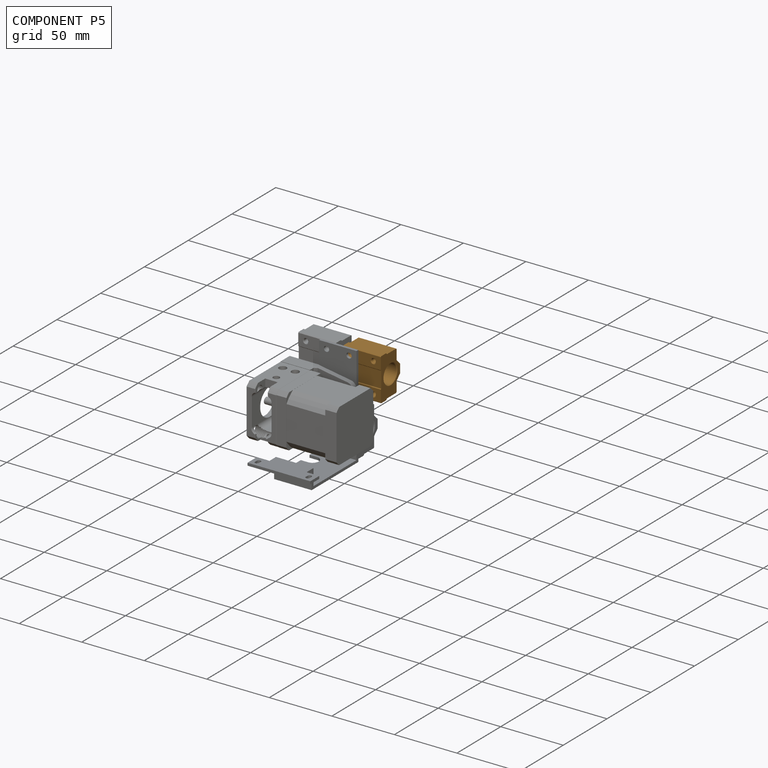
[diagram: component P5 — assembled]
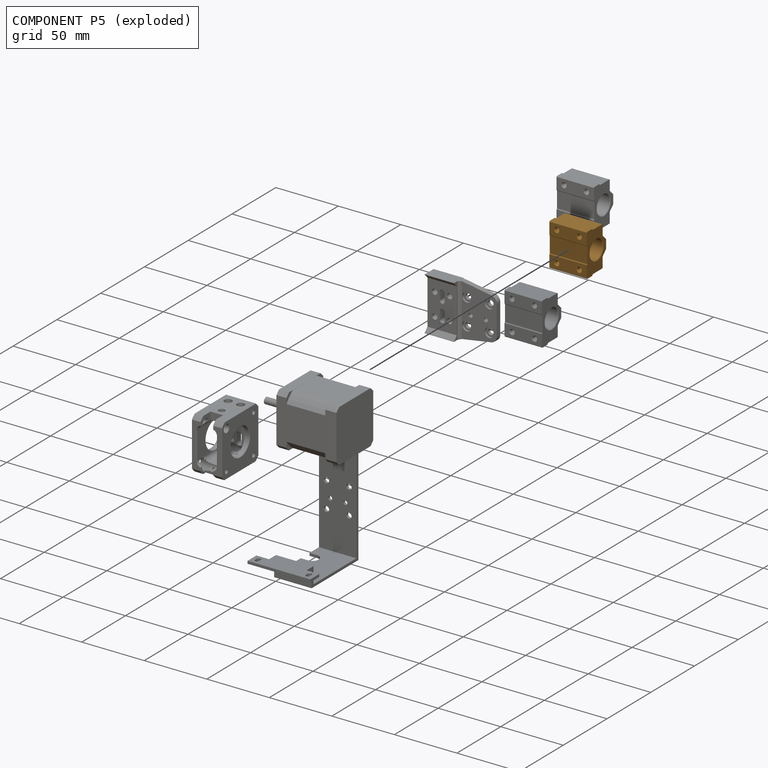
[diagram: component P5 — exploded]
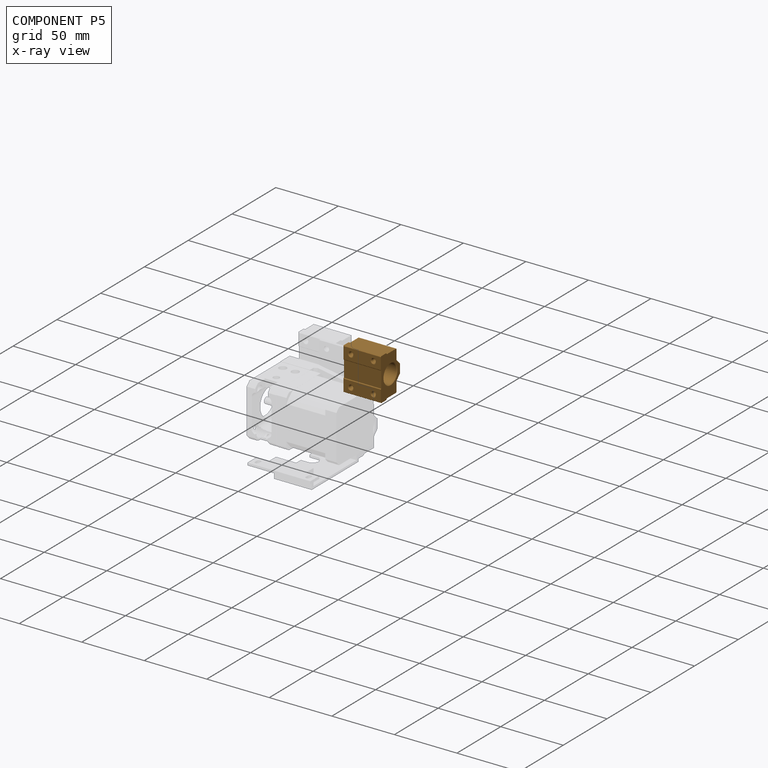
[diagram: component P5 — x-ray view]
COMPONENT P5 — geometry summary (no construction recipe available for this part):
  bounding box: 34.0 x 30.0 x 22.0 mm
  B-rep topology: 1 solid, 37 faces, 202 edges
  volume: 12794 mm^3 (57% of its bounding box)
  symmetry: 2-fold rotationally symmetric about the z axis; mirror-symmetric across its x mid-plane, y mid-plane
Held by: SLIDER mate "Slider 1" to P3.
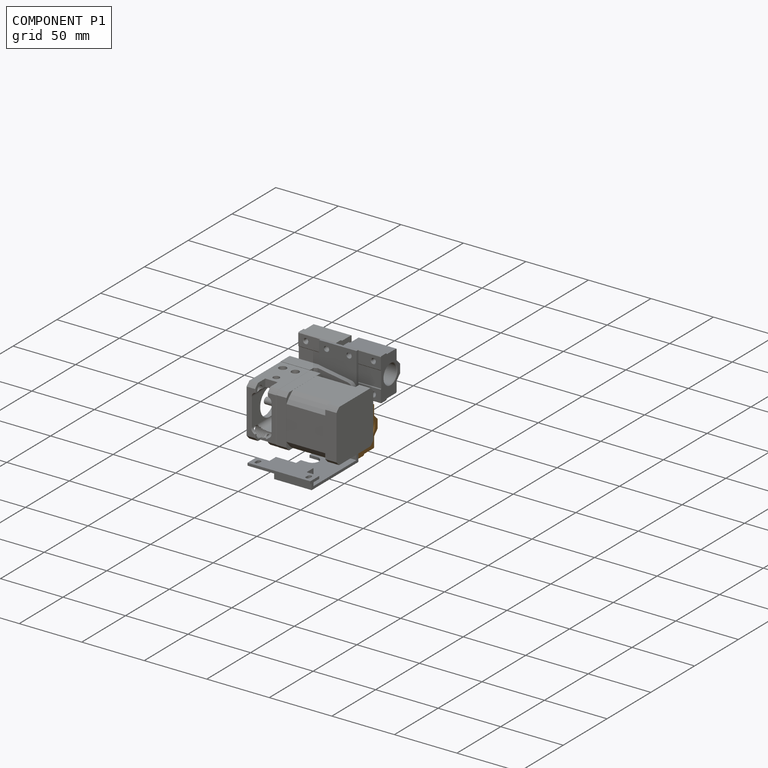
[diagram: component P1 — assembled]
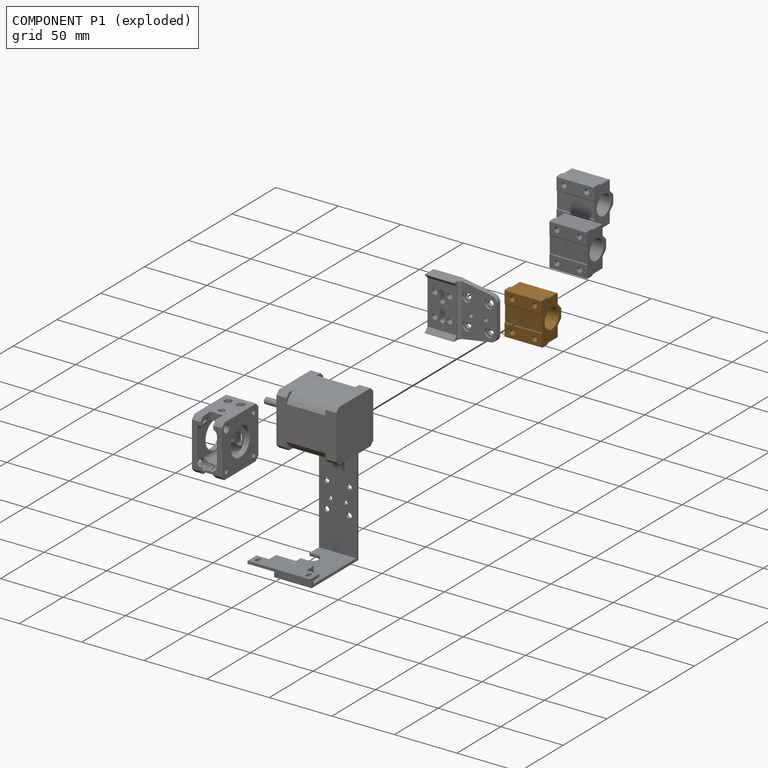
[diagram: component P1 — exploded]
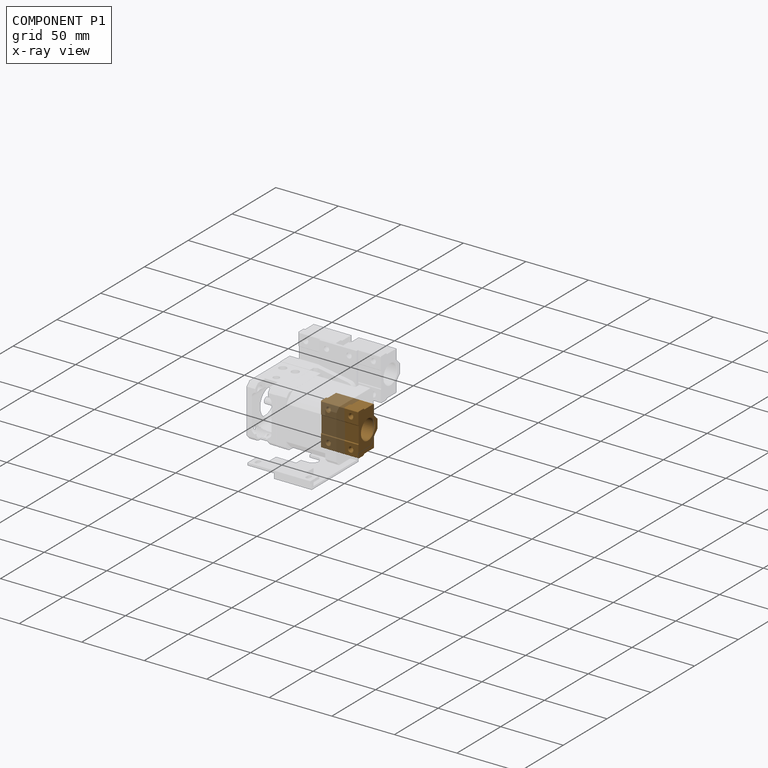
[diagram: component P1 — x-ray view]
COMPONENT P1 — geometry summary (no construction recipe available for this part):
  bounding box: 34.0 x 30.0 x 22.0 mm
  B-rep topology: 1 solid, 37 faces, 202 edges
  volume: 12794 mm^3 (57% of its bounding box)
  symmetry: 2-fold rotationally symmetric about the z axis; mirror-symmetric across its x mid-plane, y mid-plane
Held by: FASTENED mate "Fastened 4" to P3.
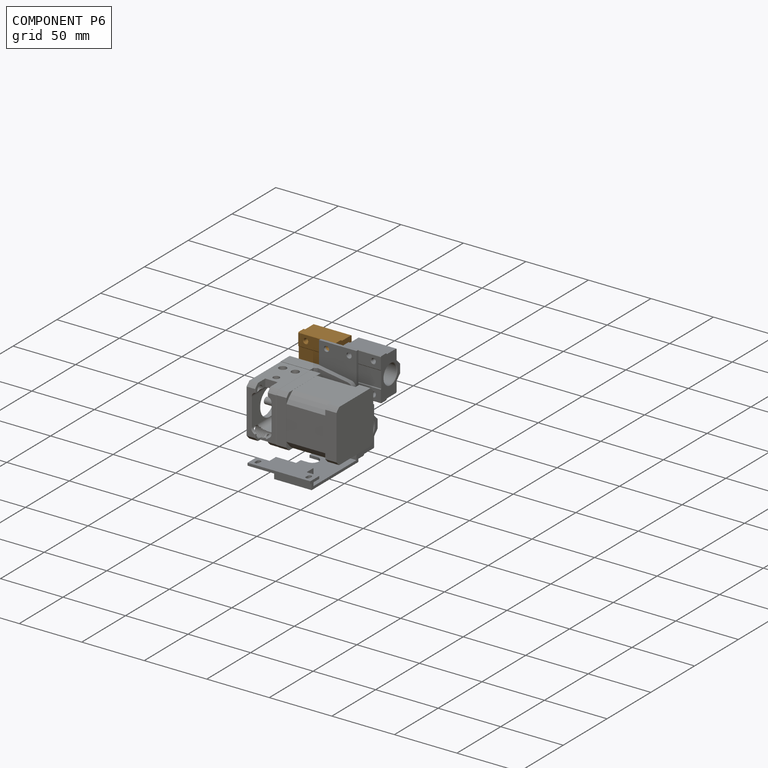
[diagram: component P6 — assembled]
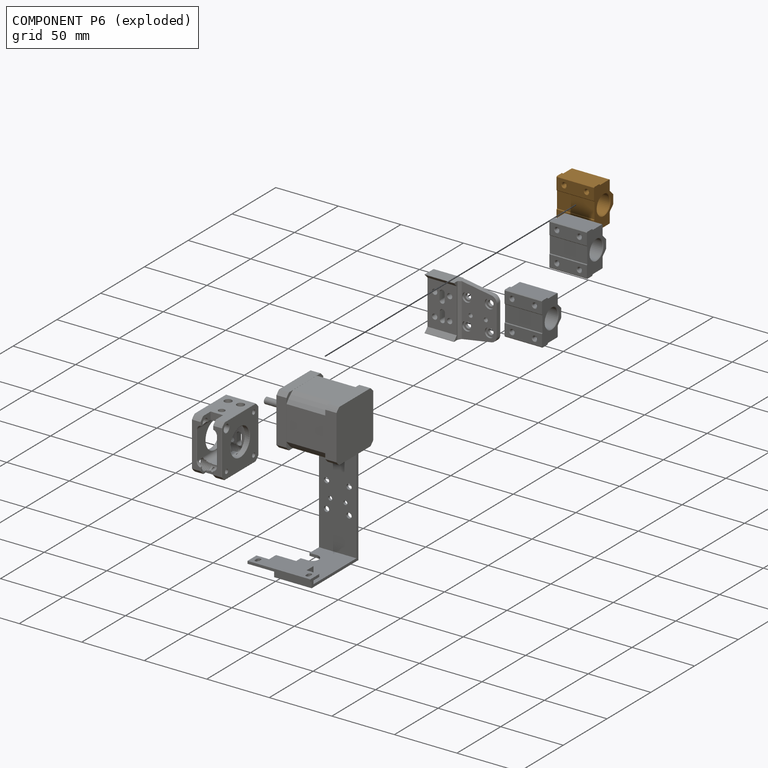
[diagram: component P6 — exploded]
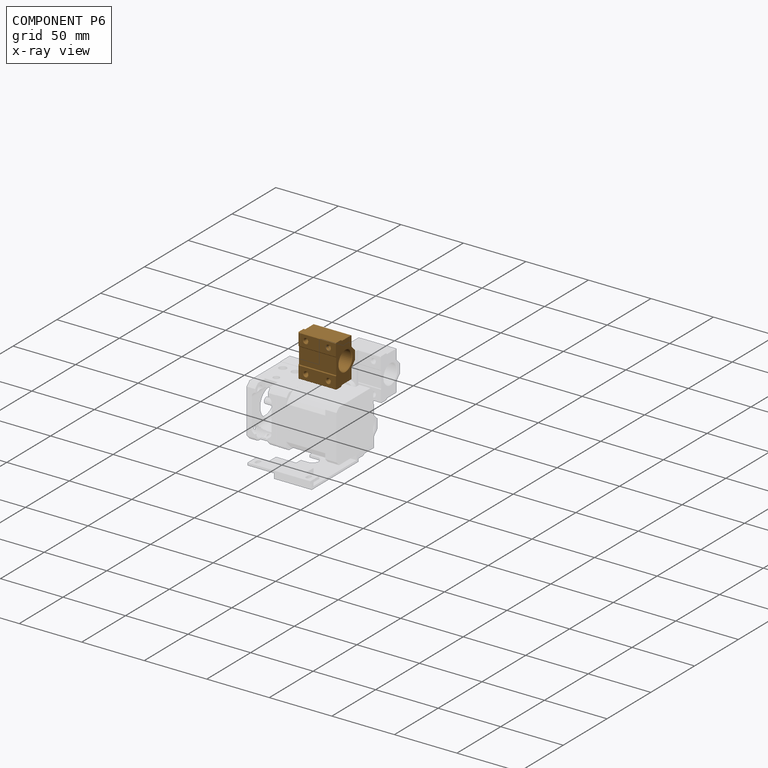
[diagram: component P6 — x-ray view]
COMPONENT P6 — geometry summary (no construction recipe available for this part):
  bounding box: 34.0 x 30.0 x 22.0 mm
  B-rep topology: 1 solid, 37 faces, 202 edges
  volume: 12794 mm^3 (57% of its bounding box)
  symmetry: 2-fold rotationally symmetric about the z axis; mirror-symmetric across its x mid-plane, y mid-plane
Held by: FASTENED mate "Fastened 3" to P3.
PROVENANCE & LICENSES
Assembly (occurrences, transforms, mates, per-part STEP geometry): AutoMate dataset, Zenodo record 7776208, CC0.
Construction recipes: CADFS (HuggingFace VladPyatov/CADFS, CC-BY-4.0, layered over the ABC dataset), FeatureScript reconstruction programs keyed by ABC model id.
Join: ABC meta listings map ABC model id -> Onshape documentId; within a shared document, parts are matched by geometric signature (bounding-box dims + volume at 0.1% relative tolerance, exact B-rep face/solid counts).
Verification: 2 of this assembly's 7 components carry a recipe attachment, and every attachment is mesh-verified: the CADFS STEP and the AutoMate member STEP were compared as meshes in their shared local frame (symmetric sampled-point-to-mesh distance); worst across the 2 attachments: below the mesh-comparison resolution (tessellation chordal tolerance ~0.177 mm) on a 118 mm part.
Renders: orthographic iso camera (az 35 / el 25); the floor grid conveys scale (grid pitch printed in each image; no ruler). In the exploded view each component is displaced by its stored offset vector: the offsets alone carry the explosion direction (mate normal/axis signs are not orientation cues and do not encode it), and separation distances are assigned per mate-chain, not proportionally to assembly-order depth.
